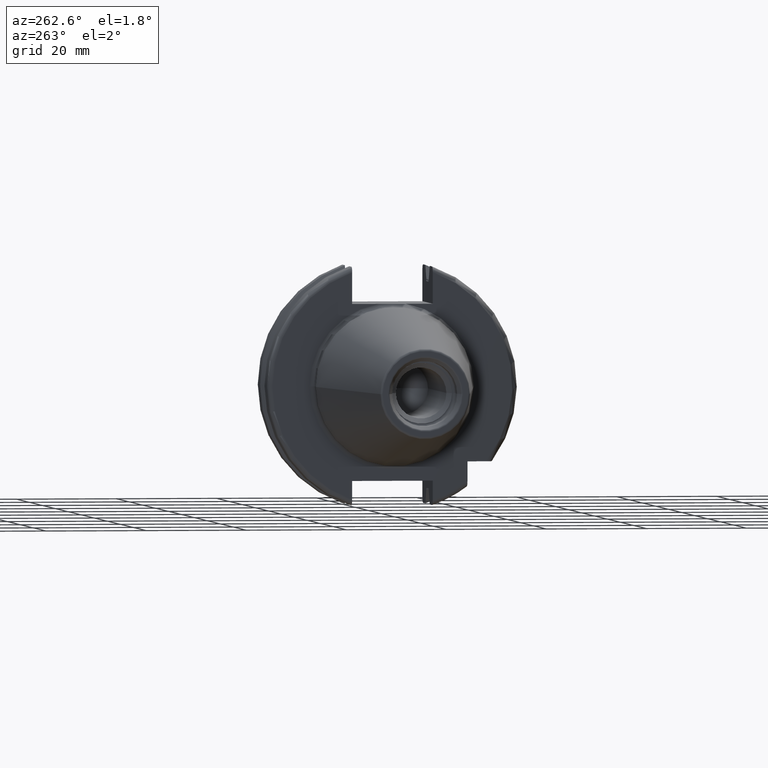
[diagram: clean part render]
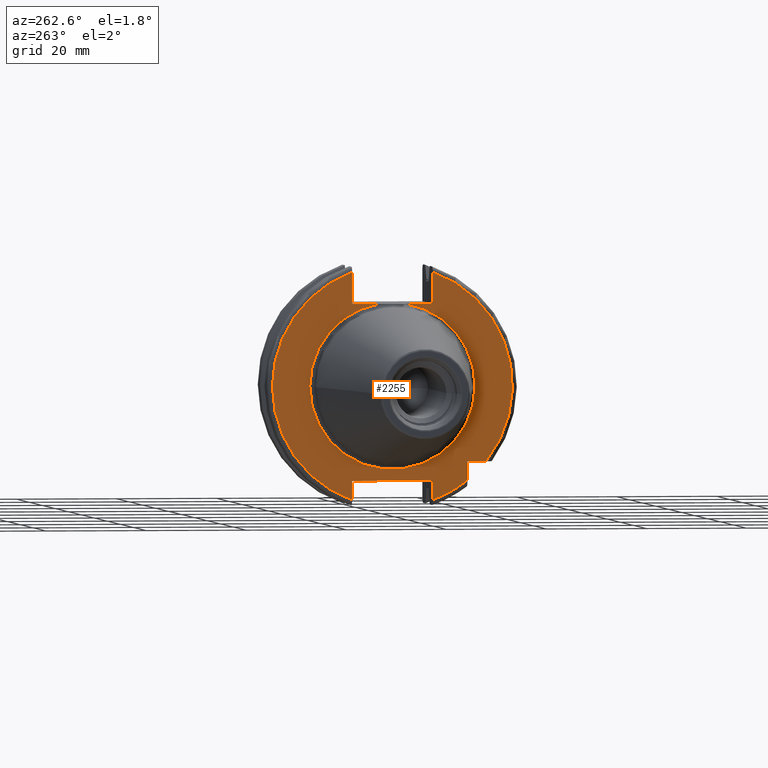
[diagram: same view with one face highlighted and labeled with its STEP entity id]
A machine part, auxiliary view. The second image highlights one B-rep face of the part: STEP entity #2255.
In plain terms, the highlighted planar face has unit normal (1, 0, 0).
Its self-contained STEP definition (entity closure, byte-faithful):
#106=CARTESIAN_POINT('',(3.2E0,0.E0,0.E0));
#107=DIRECTION('',(-1.E0,0.E0,0.E0));
#108=DIRECTION('',(0.E0,1.E0,0.E0));
#109=AXIS2_PLACEMENT_3D('',#106,#107,#108);
#122=CARTESIAN_POINT('',(3.2E0,0.E0,0.E0));
#123=DIRECTION('',(1.E0,0.E0,0.E0));
#124=DIRECTION('',(0.E0,-1.644569222269E-1,9.863842662632E-1));
#125=AXIS2_PLACEMENT_3D('',#122,#123,#124);
#127=CARTESIAN_POINT('',(3.2E0,0.E0,0.E0));
#128=DIRECTION('',(1.E0,0.E0,0.E0));
#129=DIRECTION('',(0.E0,1.E0,0.E0));
#130=AXIS2_PLACEMENT_3D('',#127,#128,#129);
#749=CARTESIAN_POINT('',(3.2E0,0.E0,0.E0));
#750=DIRECTION('',(-1.E0,0.E0,0.E0));
#751=DIRECTION('',(0.E0,-7.804160913276E-1,-6.252605252188E-1));
#752=AXIS2_PLACEMENT_3D('',#749,#750,#751);
#765=CARTESIAN_POINT('',(3.2E0,0.E0,0.E0));
#766=DIRECTION('',(-1.E0,0.E0,0.E0));
#767=DIRECTION('',(0.E0,3.355564818674E-1,9.420200886800E-1));
#768=AXIS2_PLACEMENT_3D('',#765,#766,#767);
#797=DIRECTION('',(0.E0,0.E0,1.E0));
#798=VECTOR('',#797,3.799061927434E0);
#799=CARTESIAN_POINT('',(3.2E0,8.05E0,-2.259906192743E1));
#800=LINE('',#799,#798);
#801=DIRECTION('',(0.E0,0.E0,-1.E0));
#802=VECTOR('',#801,6.299061927434E0);
#803=CARTESIAN_POINT('',(3.2E0,8.05E0,2.259906192743E1));
#804=LINE('',#803,#802);
#805=DIRECTION('',(0.E0,1.E0,0.E0));
#806=VECTOR('',#805,5.332349360201E0);
#807=CARTESIAN_POINT('',(3.2E0,2.717650639799E0,1.63E1));
#808=LINE('',#807,#806);
#809=DIRECTION('',(0.E0,1.E0,0.E0));
#810=VECTOR('',#809,5.332349360201E0);
#811=CARTESIAN_POINT('',(3.2E0,-8.05E0,1.63E1));
#812=LINE('',#811,#810);
#813=DIRECTION('',(0.E0,0.E0,-1.E0));
#814=VECTOR('',#813,6.299061927434E0);
#815=CARTESIAN_POINT('',(3.2E0,-8.05E0,2.259906192743E1));
#816=LINE('',#815,#814);
#817=DIRECTION('',(0.E0,1.E0,0.E0));
#818=VECTOR('',#817,3.722182030949E0);
#819=CARTESIAN_POINT('',(3.2E0,-1.872218203095E1,-1.5E1));
#820=LINE('',#819,#818);
#821=DIRECTION('',(0.E0,0.E0,1.E0));
#822=VECTOR('',#821,3.722182030949E0);
#823=CARTESIAN_POINT('',(3.2E0,-1.5E1,-1.872218203095E1));
#824=LINE('',#823,#822);
#825=CARTESIAN_POINT('',(3.2E0,0.E0,0.E0));
#826=DIRECTION('',(-1.E0,0.E0,0.E0));
#827=DIRECTION('',(0.E0,-3.355564818674E-1,-9.420200886800E-1));
#828=AXIS2_PLACEMENT_3D('',#825,#826,#827);
#830=DIRECTION('',(0.E0,0.E0,1.E0));
#831=VECTOR('',#830,3.799061927434E0);
#832=CARTESIAN_POINT('',(3.2E0,-8.05E0,-2.259906192743E1));
#833=LINE('',#832,#831);
#834=DIRECTION('',(0.E0,-1.E0,0.E0));
#835=VECTOR('',#834,1.61E1);
#836=CARTESIAN_POINT('',(3.2E0,8.05E0,-1.88E1));
#837=LINE('',#836,#835);
#1142=CARTESIAN_POINT('',(3.2E0,1.6525E1,0.E0));
#1144=VERTEX_POINT('',#1142);
#1148=CARTESIAN_POINT('',(3.2E0,-1.6525E1,0.E0));
#1150=VERTEX_POINT('',#1148);
#1314=CARTESIAN_POINT('',(3.2E0,8.05E0,-2.259906192743E1));
#1315=CARTESIAN_POINT('',(3.2E0,8.05E0,-1.88E1));
#1316=VERTEX_POINT('',#1314);
#1317=VERTEX_POINT('',#1315);
#1318=CARTESIAN_POINT('',(3.2E0,-8.05E0,-1.88E1));
#1319=VERTEX_POINT('',#1318);
#1320=CARTESIAN_POINT('',(3.2E0,-8.05E0,-2.259906192743E1));
#1321=VERTEX_POINT('',#1320);
#1322=CARTESIAN_POINT('',(3.2E0,-8.05E0,2.259906192743E1));
#1323=CARTESIAN_POINT('',(3.2E0,-8.05E0,1.63E1));
#1324=VERTEX_POINT('',#1322);
#1325=VERTEX_POINT('',#1323);
#1326=CARTESIAN_POINT('',(3.2E0,-2.717650639799E0,1.63E1));
#1327=VERTEX_POINT('',#1326);
#1328=CARTESIAN_POINT('',(3.2E0,2.717650639799E0,1.63E1));
#1329=CARTESIAN_POINT('',(3.2E0,8.05E0,1.63E1));
#1330=VERTEX_POINT('',#1328);
#1331=VERTEX_POINT('',#1329);
#1332=CARTESIAN_POINT('',(3.2E0,8.05E0,2.259906192743E1));
#1333=VERTEX_POINT('',#1332);
#1334=CARTESIAN_POINT('',(3.2E0,-1.5E1,-1.872218203095E1));
#1335=CARTESIAN_POINT('',(3.2E0,-1.5E1,-1.5E1));
#1336=VERTEX_POINT('',#1334);
#1337=VERTEX_POINT('',#1335);
#1338=CARTESIAN_POINT('',(3.2E0,-1.872218203095E1,-1.5E1));
#1339=VERTEX_POINT('',#1338);
#2232=CARTESIAN_POINT('',(3.2E0,0.E0,0.E0));
#2233=DIRECTION('',(1.E0,0.E0,0.E0));
#2234=DIRECTION('',(0.E0,-1.E0,0.E0));
#2235=AXIS2_PLACEMENT_3D('',#2232,#2233,#2234);
#2236=PLANE('',#2235);
#2237=ORIENTED_EDGE('',*,*,#1609,.F.);
#2238=ORIENTED_EDGE('',*,*,#2224,.F.);
#2239=ORIENTED_EDGE('',*,*,#2060,.T.);
#2240=ORIENTED_EDGE('',*,*,#1554,.F.);
#2241=ORIENTED_EDGE('',*,*,#1537,.F.);
#2242=ORIENTED_EDGE('',*,*,#1520,.T.);
#2243=ORIENTED_EDGE('',*,*,#1532,.F.);
#2244=ORIENTED_EDGE('',*,*,#1551,.F.);
#2245=ORIENTED_EDGE('',*,*,#2179,.F.);
#2246=ORIENTED_EDGE('',*,*,#2213,.F.);
#2247=ORIENTED_EDGE('',*,*,#2123,.T.);
#2248=ORIENTED_EDGE('',*,*,#1810,.F.);
#2249=ORIENTED_EDGE('',*,*,#2199,.F.);
#2250=ORIENTED_EDGE('',*,*,#1744,.T.);
#2252=ORIENTED_EDGE('',*,*,#2251,.F.);
#2253=EDGE_LOOP('',(#2237,#2238,#2239,#2240,#2241,#2242,#2243,#2244,#2245,#2246,
#2247,#2248,#2249,#2250,#2252));
#2254=FACE_OUTER_BOUND('',#2253,.F.);
#2255=ADVANCED_FACE('',(#2254),#2236,.F.);
#110=CIRCLE('',#109,1.6525E1);
#126=CIRCLE('',#125,1.6525E1);
#131=CIRCLE('',#130,1.6525E1);
#753=CIRCLE('',#752,2.399E1);
#769=CIRCLE('',#768,2.399E1);
#829=CIRCLE('',#828,2.399E1);
#1520=EDGE_CURVE('',#1144,#1150,#110,.T.);
#1532=EDGE_CURVE('',#1327,#1150,#126,.T.);
#1537=EDGE_CURVE('',#1144,#1330,#131,.T.);
#1551=EDGE_CURVE('',#1325,#1327,#812,.T.);
#1554=EDGE_CURVE('',#1330,#1331,#808,.T.);
#1609=EDGE_CURVE('',#1316,#1317,#800,.T.);
#1744=EDGE_CURVE('',#1321,#1319,#833,.T.);
#1810=EDGE_CURVE('',#1336,#1337,#824,.T.);
#2060=EDGE_CURVE('',#1333,#1331,#804,.T.);
#2123=EDGE_CURVE('',#1339,#1337,#820,.T.);
#2179=EDGE_CURVE('',#1324,#1325,#816,.T.);
#2199=EDGE_CURVE('',#1321,#1336,#829,.T.);
#2213=EDGE_CURVE('',#1339,#1324,#753,.T.);
#2224=EDGE_CURVE('',#1333,#1316,#769,.T.);
#2251=EDGE_CURVE('',#1317,#1319,#837,.T.);